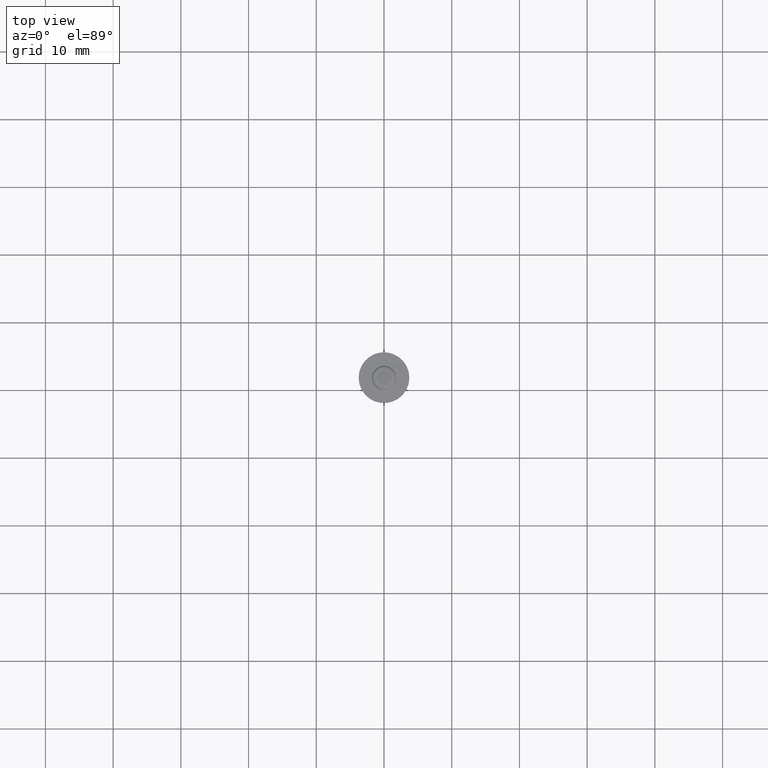
[diagram: clean part render]
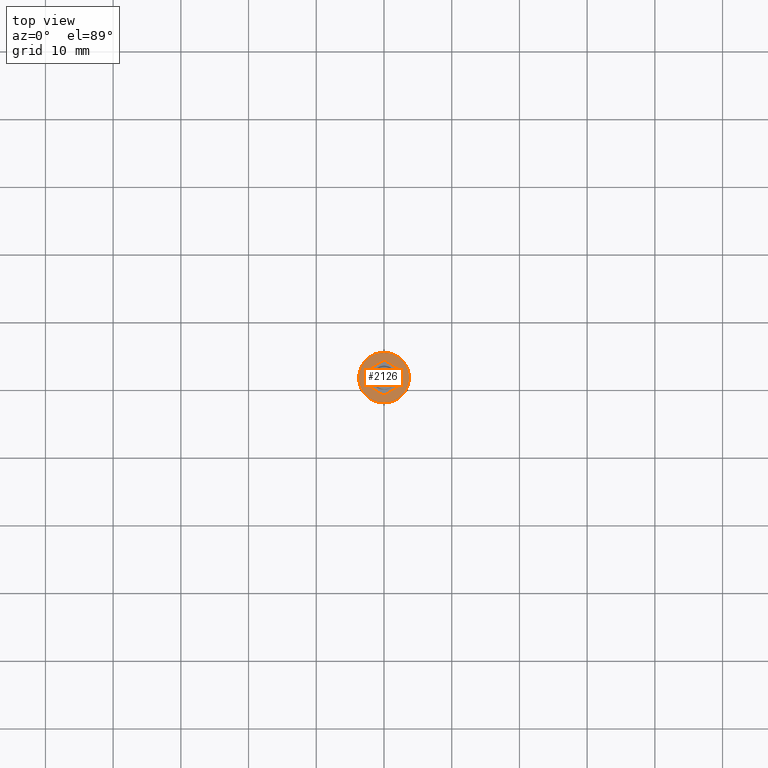
[diagram: same view with one face highlighted and labeled with its STEP entity id]
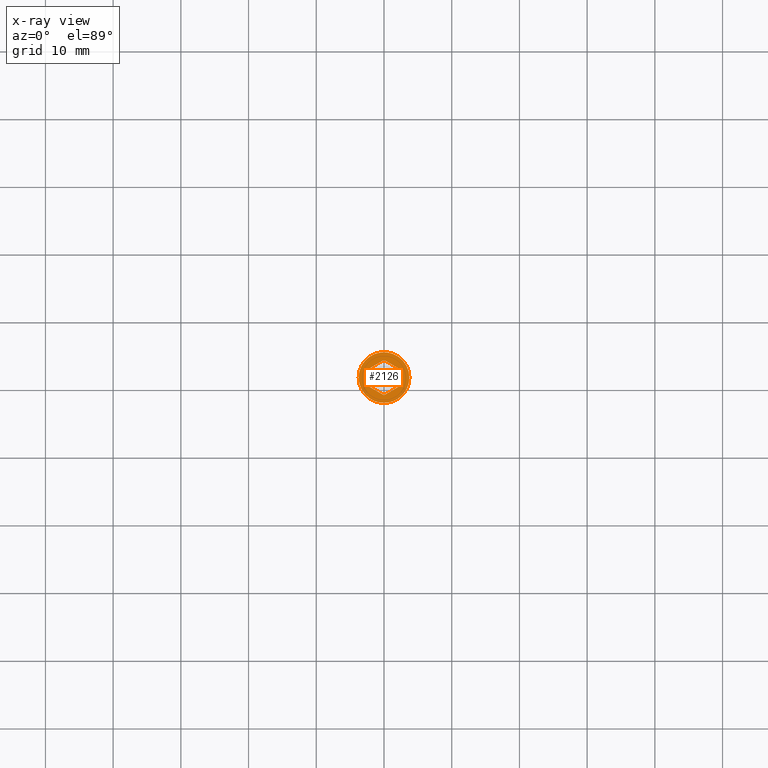
[diagram: x-ray of the same camera — body ghosted, the highlighted face saturated]
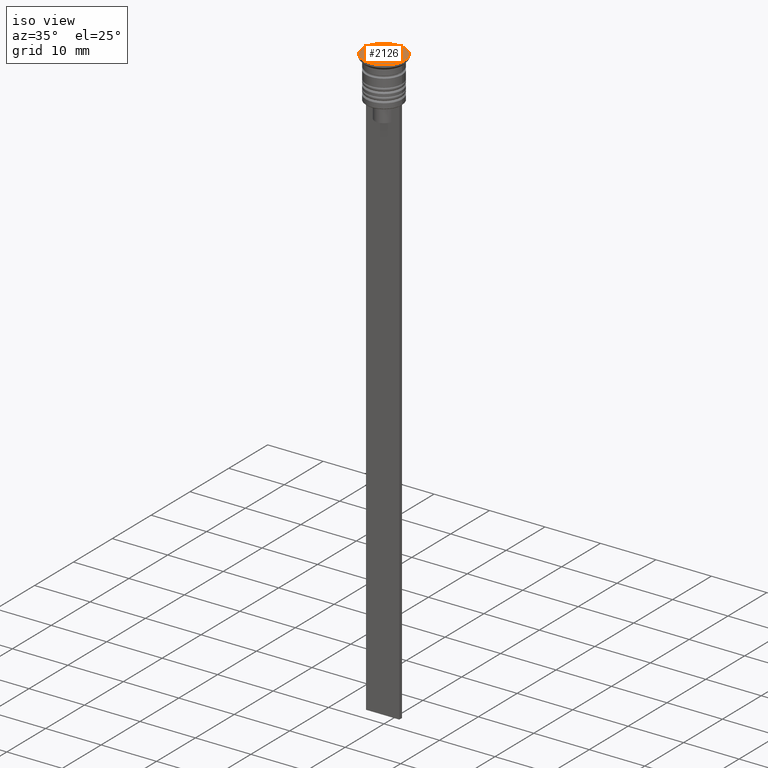
[diagram: same view with one face highlighted and labeled with its STEP entity id]
A machine part, top view. The second image highlights one B-rep face of the part: STEP entity #2126.
The next image is the same camera in x-ray: the body ghosted, the highlighted face saturated — about 0% of this face is hidden behind the body in this view.
A second angle (iso view) of the same face is appended — the face is thin or edge-on in the first view.
In plain terms, the highlighted planar face has unit normal (0, -0, 1).
Its self-contained STEP definition (entity closure, byte-faithful):
#35 = CARTESIAN_POINT ( 'NONE',  ( -2.250000000000000888, 1.299038105676658228, 0.000000000000000000 ) ) ;
#78 = EDGE_LOOP ( 'NONE', ( #1910, #1203, #1595, #1311, #626, #1439 ) ) ;
#83 = DIRECTION ( 'NONE',  ( -0.000000000000000000, -0.000000000000000000, 1.000000000000000000 ) ) ;
#103 = FACE_OUTER_BOUND ( 'NONE', #1368, .T. ) ;
#185 = LINE ( 'NONE', #854, #997 ) ;
#213 = VECTOR ( 'NONE', #619, 1000.000000000000000 ) ;
#241 = VECTOR ( 'NONE', #867, 1000.000000000000000 ) ;
#271 = DIRECTION ( 'NONE',  ( 0.000000000000000000, -0.000000000000000000, 1.000000000000000000 ) ) ;
#285 = LINE ( 'NONE', #1296, #548 ) ;
#342 = AXIS2_PLACEMENT_3D ( 'NONE', #584, #271, #1126 ) ;
#411 = CIRCLE ( 'NONE', #863, 3.750000000000000000 ) ;
#419 = EDGE_CURVE ( 'NONE', #2111, #1693, #717, .T. ) ;
#436 = FACE_BOUND ( 'NONE', #78, .T. ) ;
#454 = CARTESIAN_POINT ( 'NONE',  ( 0.000000000000000000, 2.598076211353316012, 0.000000000000000000 ) ) ;
#487 = EDGE_CURVE ( 'NONE', #1719, #1435, #2118, .T. ) ;
#512 = EDGE_CURVE ( 'NONE', #1209, #1851, #285, .T. ) ;
#548 = VECTOR ( 'NONE', #1103, 1000.000000000000000 ) ;
#584 = CARTESIAN_POINT ( 'NONE',  ( 0.000000000000000000, 0.000000000000000000, 0.000000000000000000 ) ) ;
#601 = DIRECTION ( 'NONE',  ( 1.000000000000000000, 0.000000000000000000, 0.000000000000000000 ) ) ;
#619 = DIRECTION ( 'NONE',  ( -0.8660254037844387076, -0.4999999999999999445, 0.000000000000000000 ) ) ;
#624 = VERTEX_POINT ( 'NONE', #1161 ) ;
#626 = ORIENTED_EDGE ( 'NONE', *, *, #1528, .F. ) ;
#687 = LINE ( 'NONE', #1516, #2123 ) ;
#688 = CARTESIAN_POINT ( 'NONE',  ( 3.750000000000000000, 0.000000000000000000, 0.000000000000000000 ) ) ;
#717 = CIRCLE ( 'NONE', #868, 3.750000000000000000 ) ;
#761 = DIRECTION ( 'NONE',  ( -0.000000000000000000, -0.000000000000000000, 1.000000000000000000 ) ) ;
#832 = LINE ( 'NONE', #1511, #241 ) ;
#854 = CARTESIAN_POINT ( 'NONE',  ( 2.250000000000000444, 1.299038105676659116, 0.000000000000000000 ) ) ;
#863 = AXIS2_PLACEMENT_3D ( 'NONE', #1310, #761, #601 ) ;
#867 = DIRECTION ( 'NONE',  ( 1.669238443041287429E-16, 1.000000000000000000, 0.000000000000000000 ) ) ;
#868 = AXIS2_PLACEMENT_3D ( 'NONE', #1398, #83, #1933 ) ;
#952 = CARTESIAN_POINT ( 'NONE',  ( 2.224527942369933556E-16, -2.598076211353316456, 0.000000000000000000 ) ) ;
#981 = CARTESIAN_POINT ( 'NONE',  ( 0.000000000000000000, 2.598076211353316456, 0.000000000000000000 ) ) ;
#997 = VECTOR ( 'NONE', #1558, 1000.000000000000000 ) ;
#1016 = DIRECTION ( 'NONE',  ( 0.8660254037844385966, 0.5000000000000001110, 0.000000000000000000 ) ) ;
#1024 = EDGE_CURVE ( 'NONE', #1851, #624, #687, .T. ) ;
#1103 = DIRECTION ( 'NONE',  ( 0.8660254037844387076, -0.4999999999999998335, 0.000000000000000000 ) ) ;
#1115 = CARTESIAN_POINT ( 'NONE',  ( -3.750000000000000000, 4.592425496802573972E-16, 0.000000000000000000 ) ) ;
#1126 = DIRECTION ( 'NONE',  ( 1.000000000000000000, 0.000000000000000000, 0.000000000000000000 ) ) ;
#1161 = CARTESIAN_POINT ( 'NONE',  ( 2.250000000000000000, -1.299038105676658228, 0.000000000000000000 ) ) ;
#1203 = ORIENTED_EDGE ( 'NONE', *, *, #1413, .F. ) ;
#1209 = VERTEX_POINT ( 'NONE', #1880 ) ;
#1244 = ORIENTED_EDGE ( 'NONE', *, *, #419, .T. ) ;
#1296 = CARTESIAN_POINT ( 'NONE',  ( -2.250000000000000888, -1.299038105676658228, 0.000000000000000000 ) ) ;
#1303 = CARTESIAN_POINT ( 'NONE',  ( 2.250000000000000444, 1.299038105676659116, 0.000000000000000000 ) ) ;
#1310 = CARTESIAN_POINT ( 'NONE',  ( 0.000000000000000000, 0.000000000000000000, 0.000000000000000000 ) ) ;
#1311 = ORIENTED_EDGE ( 'NONE', *, *, #512, .F. ) ;
#1368 = EDGE_LOOP ( 'NONE', ( #1244, #2084 ) ) ;
#1385 = DIRECTION ( 'NONE',  ( 0.000000000000000000, -1.000000000000000000, 0.000000000000000000 ) ) ;
#1398 = CARTESIAN_POINT ( 'NONE',  ( 0.000000000000000000, 0.000000000000000000, 0.000000000000000000 ) ) ;
#1413 = EDGE_CURVE ( 'NONE', #624, #1948, #832, .T. ) ;
#1430 = EDGE_CURVE ( 'NONE', #1948, #1719, #185, .T. ) ;
#1435 = VERTEX_POINT ( 'NONE', #35 ) ;
#1439 = ORIENTED_EDGE ( 'NONE', *, *, #487, .F. ) ;
#1511 = CARTESIAN_POINT ( 'NONE',  ( 2.250000000000000000, -1.299038105676658228, 0.000000000000000000 ) ) ;
#1516 = CARTESIAN_POINT ( 'NONE',  ( 2.224527942369933556E-16, -2.598076211353316456, 0.000000000000000000 ) ) ;
#1528 = EDGE_CURVE ( 'NONE', #1435, #1209, #1886, .T. ) ;
#1538 = VECTOR ( 'NONE', #1385, 1000.000000000000000 ) ;
#1558 = DIRECTION ( 'NONE',  ( -0.8660254037844388186, 0.4999999999999997224, 0.000000000000000000 ) ) ;
#1595 = ORIENTED_EDGE ( 'NONE', *, *, #1024, .F. ) ;
#1693 = VERTEX_POINT ( 'NONE', #1115 ) ;
#1719 = VERTEX_POINT ( 'NONE', #454 ) ;
#1851 = VERTEX_POINT ( 'NONE', #952 ) ;
#1878 = CARTESIAN_POINT ( 'NONE',  ( -2.250000000000000888, 1.299038105676658228, 0.000000000000000000 ) ) ;
#1880 = CARTESIAN_POINT ( 'NONE',  ( -2.250000000000000888, -1.299038105676658228, 0.000000000000000000 ) ) ;
#1886 = LINE ( 'NONE', #1878, #1538 ) ;
#1910 = ORIENTED_EDGE ( 'NONE', *, *, #1430, .F. ) ;
#1933 = DIRECTION ( 'NONE',  ( 1.000000000000000000, 0.000000000000000000, 0.000000000000000000 ) ) ;
#1948 = VERTEX_POINT ( 'NONE', #1303 ) ;
#2084 = ORIENTED_EDGE ( 'NONE', *, *, #2154, .T. ) ;
#2111 = VERTEX_POINT ( 'NONE', #688 ) ;
#2113 = PLANE ( 'NONE',  #342 ) ;
#2118 = LINE ( 'NONE', #981, #213 ) ;
#2123 = VECTOR ( 'NONE', #1016, 1000.000000000000000 ) ;
#2126 = ADVANCED_FACE ( 'NONE', ( #436, #103 ), #2113, .T. ) ;
#2154 = EDGE_CURVE ( 'NONE', #1693, #2111, #411, .T. ) ;